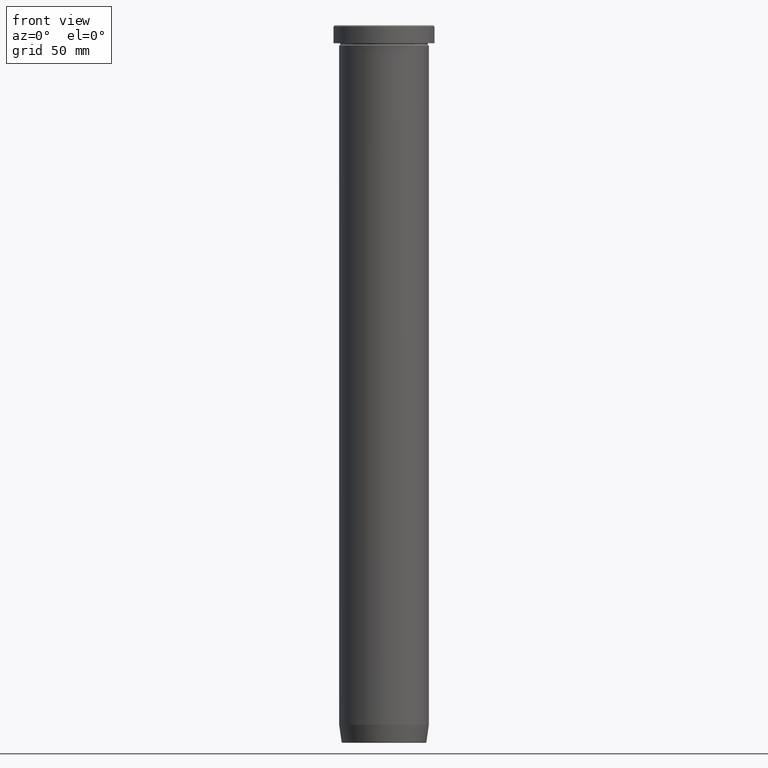
[diagram: clean part render]
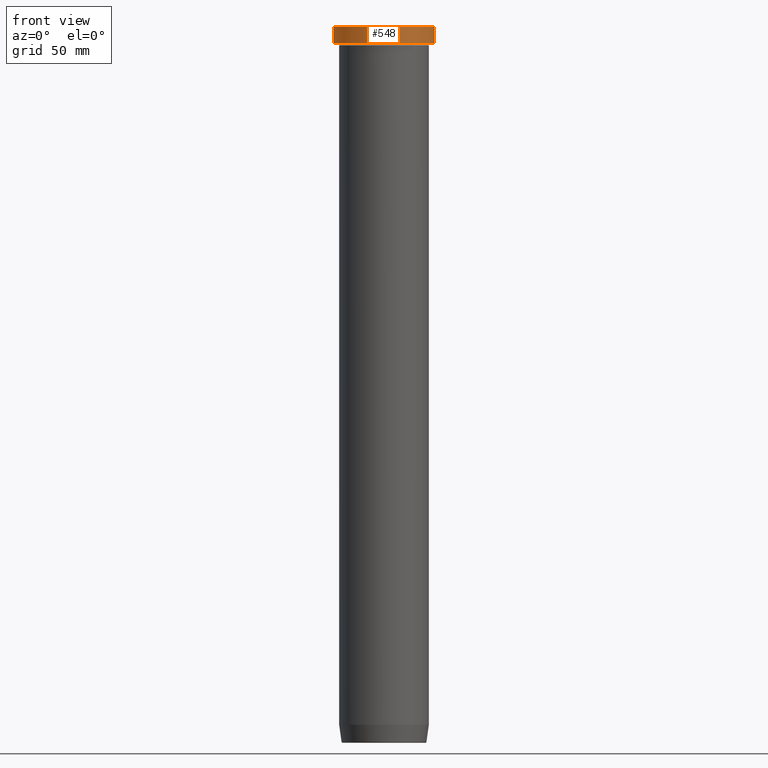
[diagram: same view with one face highlighted and labeled with its STEP entity id]
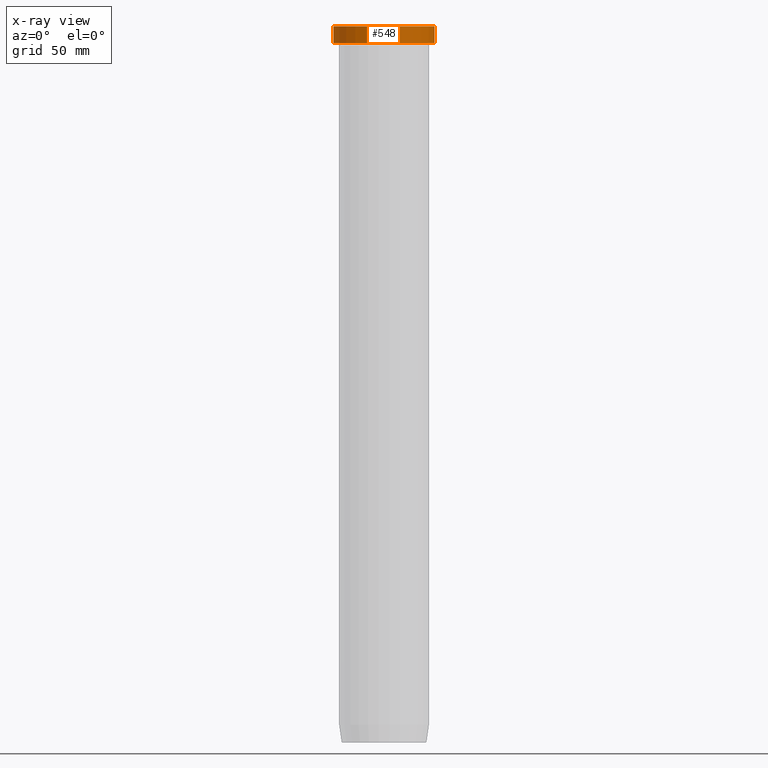
[diagram: x-ray of the same camera — body ghosted, the highlighted face saturated]
A machine part, front view. The second image highlights one B-rep face of the part: STEP entity #548.
The next image is the same camera in x-ray: the body ghosted, the highlighted face saturated — about 0% of this face is hidden behind the body in this view.
In plain terms, the highlighted cylindrical surface (partial cylindrical patch) has radius 22.5 mm, axis along (-0, -0, 1).
Its self-contained STEP definition (entity closure, byte-faithful):
#10 = DIRECTION ( 'NONE',  ( -0.000000000000000000, -0.000000000000000000, 1.000000000000000000 ) ) ;
#16 = EDGE_CURVE ( 'NONE', #121, #127, #240, .T. ) ;
#17 = VERTEX_POINT ( 'NONE', #399 ) ;
#49 = CARTESIAN_POINT ( 'NONE',  ( 22.50000000000000000, 0.000000000000000000, -0.4999999999999935052 ) ) ;
#92 = FACE_OUTER_BOUND ( 'NONE', #158, .T. ) ;
#121 = VERTEX_POINT ( 'NONE', #49 ) ;
#125 = CARTESIAN_POINT ( 'NONE',  ( 0.000000000000000000, 0.000000000000000000, 0.000000000000000000 ) ) ;
#127 = VERTEX_POINT ( 'NONE', #347 ) ;
#135 = CARTESIAN_POINT ( 'NONE',  ( 0.000000000000000000, 0.000000000000000000, -0.4999999999999935052 ) ) ;
#146 = EDGE_CURVE ( 'NONE', #161, #121, #343, .T. ) ;
#158 = EDGE_LOOP ( 'NONE', ( #208, #296, #577, #584 ) ) ;
#161 = VERTEX_POINT ( 'NONE', #523 ) ;
#176 = DIRECTION ( 'NONE',  ( 0.000000000000000000, 0.000000000000000000, -1.000000000000000000 ) ) ;
#194 = AXIS2_PLACEMENT_3D ( 'NONE', #135, #176, #281 ) ;
#203 = EDGE_CURVE ( 'NONE', #17, #161, #542, .T. ) ;
#208 = ORIENTED_EDGE ( 'NONE', *, *, #513, .F. ) ;
#229 = AXIS2_PLACEMENT_3D ( 'NONE', #125, #583, #320 ) ;
#240 = CIRCLE ( 'NONE', #194, 22.50000000000000000 ) ;
#248 = CARTESIAN_POINT ( 'NONE',  ( 0.000000000000000000, 0.000000000000000000, -7.999999999999998224 ) ) ;
#281 = DIRECTION ( 'NONE',  ( 1.000000000000000000, 0.000000000000000000, 0.000000000000000000 ) ) ;
#291 = CYLINDRICAL_SURFACE ( 'NONE', #229, 22.50000000000000000 ) ;
#293 = VECTOR ( 'NONE', #302, 1000.000000000000000 ) ;
#295 = CARTESIAN_POINT ( 'NONE',  ( 22.50000000000000000, 0.000000000000000000, 0.000000000000000000 ) ) ;
#296 = ORIENTED_EDGE ( 'NONE', *, *, #203, .T. ) ;
#302 = DIRECTION ( 'NONE',  ( -0.000000000000000000, -0.000000000000000000, 1.000000000000000000 ) ) ;
#320 = DIRECTION ( 'NONE',  ( 1.000000000000000000, 0.000000000000000000, 0.000000000000000000 ) ) ;
#343 = LINE ( 'NONE', #295, #293 ) ;
#347 = CARTESIAN_POINT ( 'NONE',  ( -22.50000000000000000, 2.755455298081544778E-15, -0.4999999999999935052 ) ) ;
#383 = DIRECTION ( 'NONE',  ( 1.000000000000000000, 0.000000000000000000, 0.000000000000000000 ) ) ;
#399 = CARTESIAN_POINT ( 'NONE',  ( -22.50000000000000000, 2.755455298081544778E-15, -7.999999999999998224 ) ) ;
#419 = CARTESIAN_POINT ( 'NONE',  ( -22.50000000000000000, 2.755455298081544778E-15, 0.000000000000000000 ) ) ;
#425 = VECTOR ( 'NONE', #597, 1000.000000000000000 ) ;
#454 = LINE ( 'NONE', #419, #425 ) ;
#498 = AXIS2_PLACEMENT_3D ( 'NONE', #248, #10, #383 ) ;
#513 = EDGE_CURVE ( 'NONE', #17, #127, #454, .T. ) ;
#523 = CARTESIAN_POINT ( 'NONE',  ( 22.50000000000000000, 0.000000000000000000, -7.999999999999998224 ) ) ;
#542 = CIRCLE ( 'NONE', #498, 22.50000000000000000 ) ;
#548 = ADVANCED_FACE ( 'NONE', ( #92 ), #291, .T. ) ;
#577 = ORIENTED_EDGE ( 'NONE', *, *, #146, .T. ) ;
#583 = DIRECTION ( 'NONE',  ( -0.000000000000000000, -0.000000000000000000, 1.000000000000000000 ) ) ;
#584 = ORIENTED_EDGE ( 'NONE', *, *, #16, .T. ) ;
#597 = DIRECTION ( 'NONE',  ( -0.000000000000000000, -0.000000000000000000, 1.000000000000000000 ) ) ;